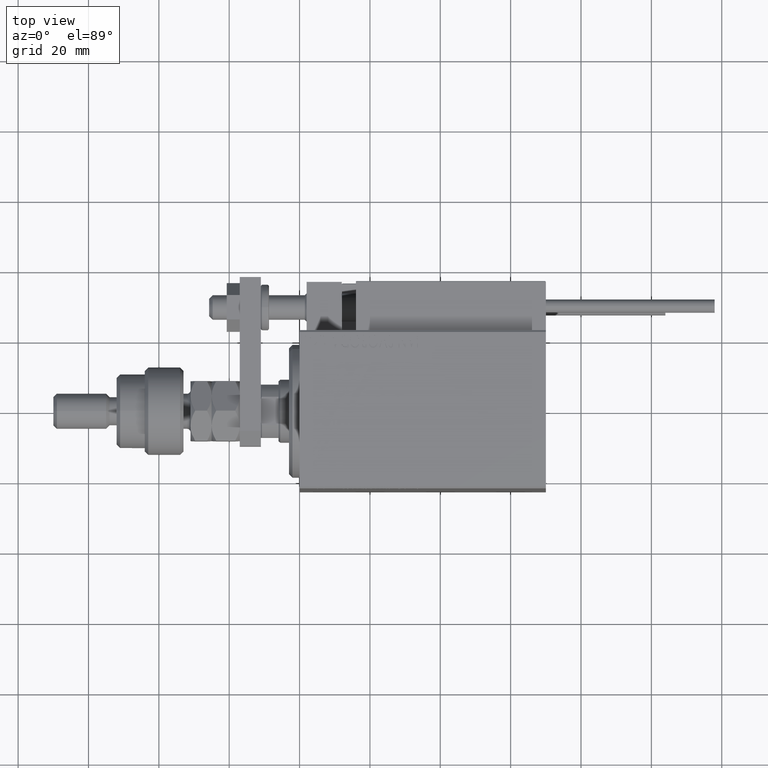
[diagram: clean part render]
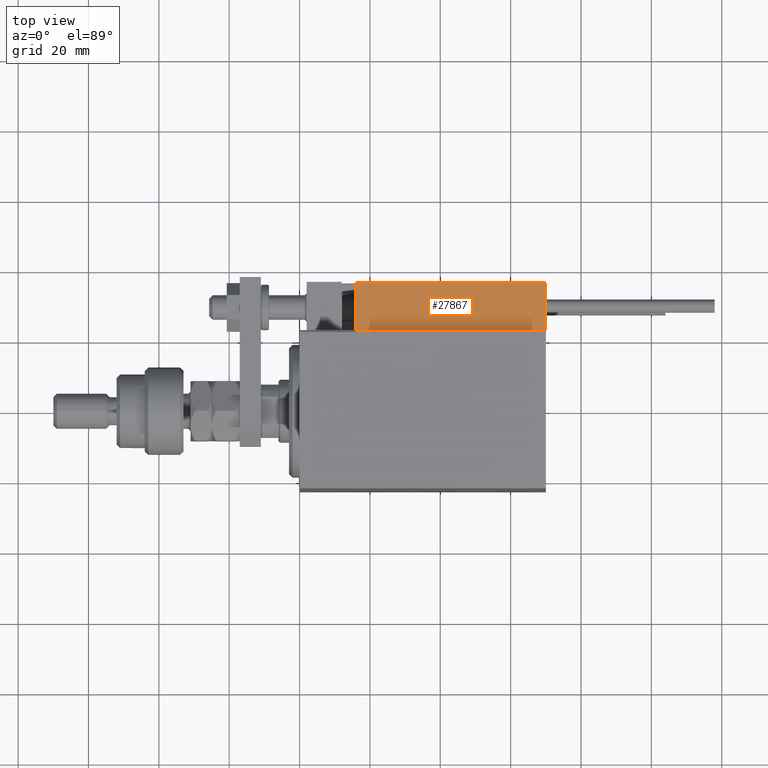
[diagram: same view with one face highlighted and labeled with its STEP entity id]
A machine part, top view. The second image highlights one B-rep face of the part: STEP entity #27867.
In plain terms, the highlighted planar face has unit normal (-0, -0, -1).
Its self-contained STEP definition (entity closure, byte-faithful):
#936 = CARTESIAN_POINT ( 'NONE',  ( 27.00000000000006395, 20.00000000000001776, 14.00000000000000000 ) ) ;
#9361 = EDGE_CURVE ( 'NONE', #43738, #37309, #24165, .T. ) ;
#10397 = PLANE ( 'NONE',  #49712 ) ;
#10932 = FACE_OUTER_BOUND ( 'NONE', #20922, .T. ) ;
#12456 = CARTESIAN_POINT ( 'NONE',  ( -26.99999999999993605, 20.00000000000002132, 0.000000000000000000 ) ) ;
#12812 = CARTESIAN_POINT ( 'NONE',  ( 27.00000000000006395, 20.00000000000001776, 13.70000000000000107 ) ) ;
#13449 = CARTESIAN_POINT ( 'NONE',  ( -26.99999999999993605, 20.00000000000002132, 13.70000000000000107 ) ) ;
#15071 = DIRECTION ( 'NONE',  ( -0.000000000000000000, -0.000000000000000000, -1.000000000000000000 ) ) ;
#15616 = LINE ( 'NONE', #32525, #41939 ) ;
#17835 = VECTOR ( 'NONE', #31191, 1000.000000000000000 ) ;
#18370 = DIRECTION ( 'NONE',  ( -0.000000000000000000, -0.000000000000000000, -1.000000000000000000 ) ) ;
#20922 = EDGE_LOOP ( 'NONE', ( #39310, #36367, #26504, #42927 ) ) ;
#22463 = DIRECTION ( 'NONE',  ( -6.424901762877063495E-17, -1.000000000000000000, 0.000000000000000000 ) ) ;
#23509 = EDGE_CURVE ( 'NONE', #46354, #37309, #43316, .T. ) ;
#23629 = EDGE_CURVE ( 'NONE', #43738, #52807, #15616, .T. ) ;
#24165 = LINE ( 'NONE', #36279, #34686 ) ;
#26157 = LINE ( 'NONE', #936, #49026 ) ;
#26504 = ORIENTED_EDGE ( 'NONE', *, *, #32685, .T. ) ;
#27553 = DIRECTION ( 'NONE',  ( 1.000000000000000000, -6.424901762877063495E-17, 0.000000000000000000 ) ) ;
#27867 = ADVANCED_FACE ( 'NONE', ( #10932 ), #10397, .F. ) ;
#31191 = DIRECTION ( 'NONE',  ( -1.000000000000000000, 6.424901762877062263E-17, 0.000000000000000000 ) ) ;
#31245 = CARTESIAN_POINT ( 'NONE',  ( 27.00000000000006395, 20.00000000000001776, 0.000000000000000000 ) ) ;
#32525 = CARTESIAN_POINT ( 'NONE',  ( 27.00000000000006395, 20.00000000000001776, 13.70000000000000107 ) ) ;
#32685 = EDGE_CURVE ( 'NONE', #52807, #46354, #26157, .T. ) ;
#34686 = VECTOR ( 'NONE', #15071, 1000.000000000000000 ) ;
#35104 = CARTESIAN_POINT ( 'NONE',  ( 27.00000000000006395, 20.00000000000001776, 14.00000000000000000 ) ) ;
#36279 = CARTESIAN_POINT ( 'NONE',  ( -26.99999999999993605, 20.00000000000002132, 14.00000000000000000 ) ) ;
#36367 = ORIENTED_EDGE ( 'NONE', *, *, #23629, .T. ) ;
#37309 = VERTEX_POINT ( 'NONE', #12456 ) ;
#38730 = CARTESIAN_POINT ( 'NONE',  ( 27.00000000000006395, 20.00000000000001776, 0.000000000000000000 ) ) ;
#39310 = ORIENTED_EDGE ( 'NONE', *, *, #9361, .F. ) ;
#41939 = VECTOR ( 'NONE', #51927, 1000.000000000000000 ) ;
#42927 = ORIENTED_EDGE ( 'NONE', *, *, #23509, .T. ) ;
#43316 = LINE ( 'NONE', #38730, #17835 ) ;
#43738 = VERTEX_POINT ( 'NONE', #13449 ) ;
#46354 = VERTEX_POINT ( 'NONE', #31245 ) ;
#49026 = VECTOR ( 'NONE', #18370, 1000.000000000000000 ) ;
#49712 = AXIS2_PLACEMENT_3D ( 'NONE', #35104, #22463, #27553 ) ;
#51927 = DIRECTION ( 'NONE',  ( 1.000000000000000000, -6.424901762877063495E-17, -0.000000000000000000 ) ) ;
#52807 = VERTEX_POINT ( 'NONE', #12812 ) ;